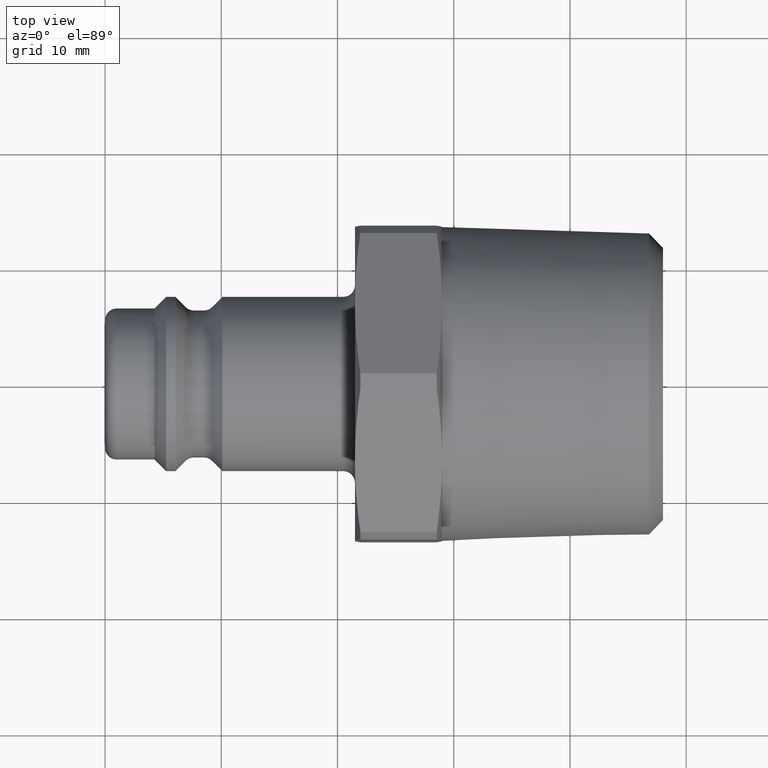
[diagram: clean part render]
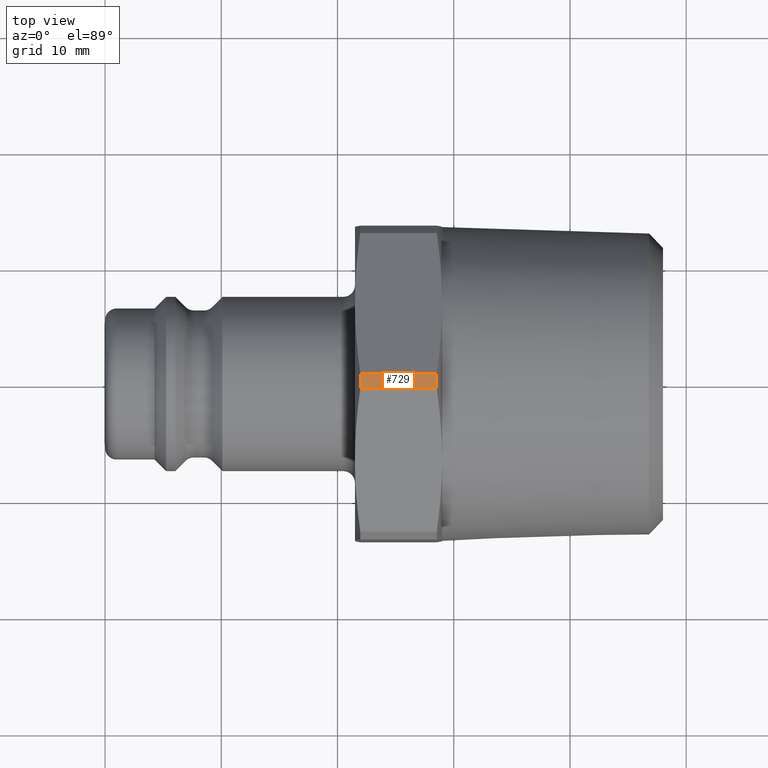
[diagram: same view with one face highlighted and labeled with its STEP entity id]
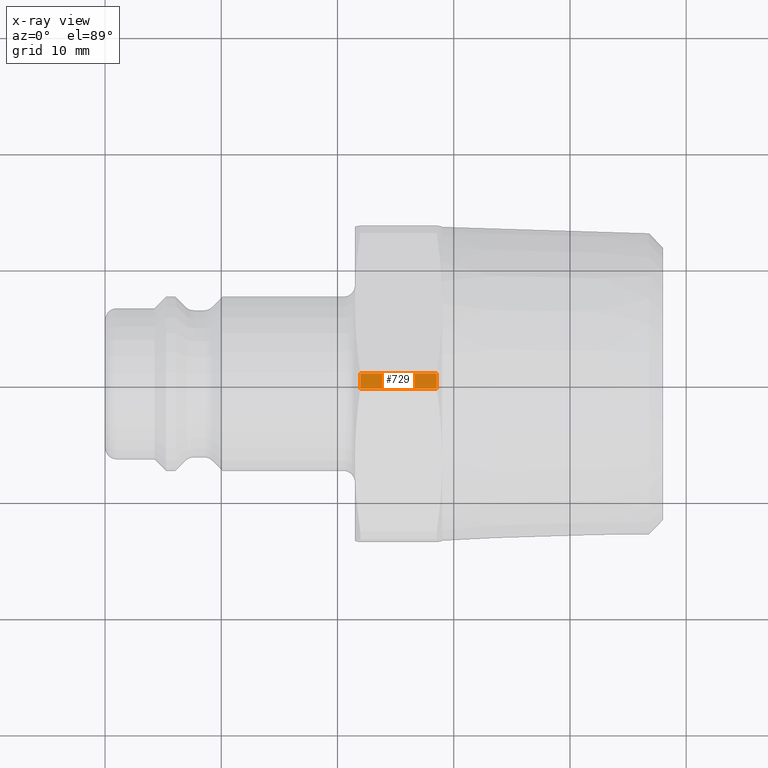
[diagram: x-ray of the same camera — body ghosted, the highlighted face saturated]
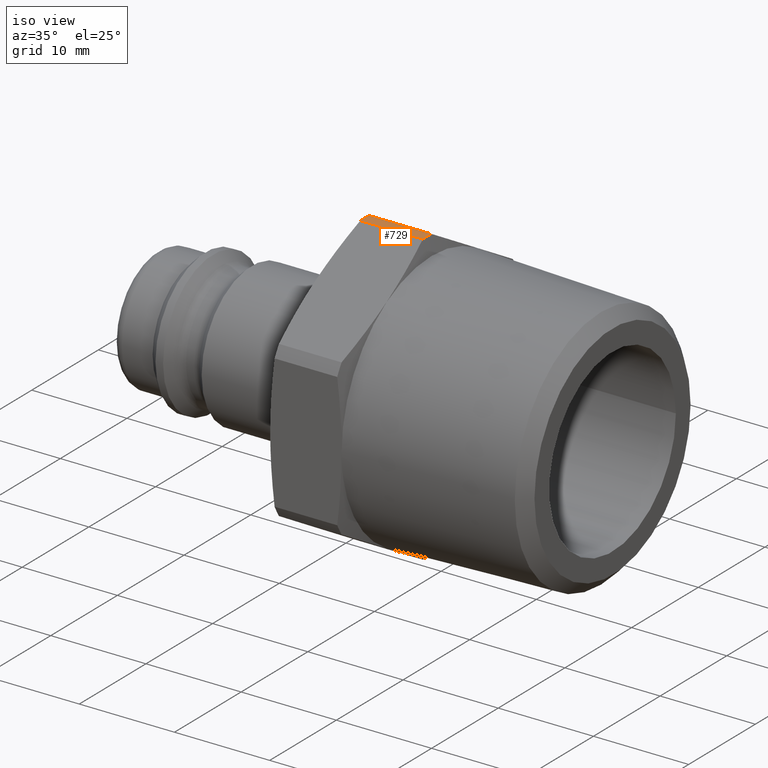
[diagram: same view with one face highlighted and labeled with its STEP entity id]
A machine part, top view. The second image highlights one B-rep face of the part: STEP entity #729.
The next image is the same camera in x-ray: the body ghosted, the highlighted face saturated — about 0% of this face is hidden behind the body in this view.
A second angle (iso view) of the same face is appended — the face is thin or edge-on in the first view.
In plain terms, the highlighted cylindrical surface (partial cylindrical patch) has radius 15.225 mm, axis along (1, 0, 0).
Its self-contained STEP definition (entity closure, byte-faithful):
#365=CARTESIAN_POINT('',(28.537787643056323,-0.653856239391987,15.210953192295616));
#366=VERTEX_POINT('',#365);
#380=CARTESIAN_POINT('',(21.962212356943684,-0.653856239391987,15.210953192295616));
#381=VERTEX_POINT('',#380);
#382=CARTESIAN_POINT('',(21.962212356943684,-0.653856239391987,15.210953192295616));
#383=DIRECTION('',(1.0,0.0,0.0));
#384=VECTOR('',#383,6.575575286112638);
#385=LINE('',#382,#384);
#386=EDGE_CURVE('',#381,#366,#385,.T.);
#409=CARTESIAN_POINT('',(21.962212356943684,0.653856239391991,15.210953192295616));
#410=VERTEX_POINT('',#409);
#426=CARTESIAN_POINT('',(28.537787643056323,0.653856239391991,15.210953192295616));
#427=VERTEX_POINT('',#426);
#428=CARTESIAN_POINT('',(28.537787643056323,0.653856239391991,15.210953192295616));
#429=DIRECTION('',(-1.0,0.0,0.0));
#430=VECTOR('',#429,6.575575286112638);
#431=LINE('',#428,#430);
#432=EDGE_CURVE('',#427,#410,#431,.T.);
#542=CARTESIAN_POINT('',(28.537787643056319,0.0,0.0));
#543=DIRECTION('',(1.0,0.0,0.0));
#544=DIRECTION('',(0.0,1.0,0.0));
#545=AXIS2_PLACEMENT_3D('',#542,#543,#544);
#546=CIRCLE('',#545,15.225000000000000);
#547=EDGE_CURVE('',#427,#366,#546,.T.);
#712=CARTESIAN_POINT('',(25.250000000000004,0.0,0.0));
#713=DIRECTION('',(1.0,0.0,0.0));
#714=DIRECTION('',(0.0,1.0,0.0));
#715=AXIS2_PLACEMENT_3D('',#712,#713,#714);
#716=CYLINDRICAL_SURFACE('',#715,15.225000000000000);
#717=ORIENTED_EDGE('',*,*,#386,.T.);
#718=ORIENTED_EDGE('',*,*,#547,.F.);
#719=ORIENTED_EDGE('',*,*,#432,.T.);
#720=CARTESIAN_POINT('',(21.962212356943684,0.0,0.0));
#721=DIRECTION('',(1.0,0.0,0.0));
#722=DIRECTION('',(0.0,1.0,0.0));
#723=AXIS2_PLACEMENT_3D('',#720,#721,#722);
#724=CIRCLE('',#723,15.225000000000000);
#725=EDGE_CURVE('',#410,#381,#724,.T.);
#726=ORIENTED_EDGE('',*,*,#725,.T.);
#727=EDGE_LOOP('',(#717,#718,#719,#726));
#728=FACE_OUTER_BOUND('',#727,.T.);
#729=ADVANCED_FACE('',(#728),#716,.T.);